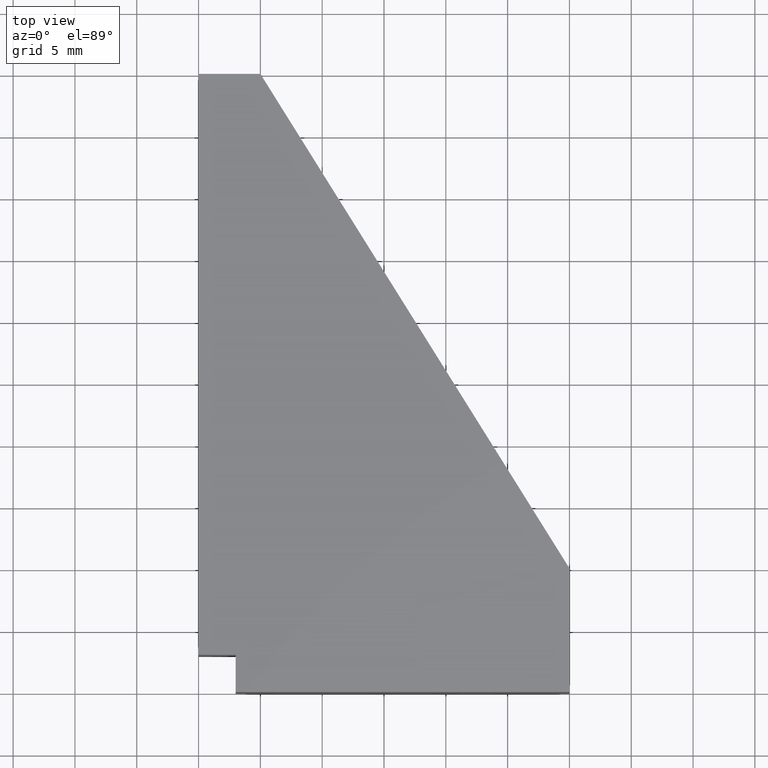
[diagram: clean part render]
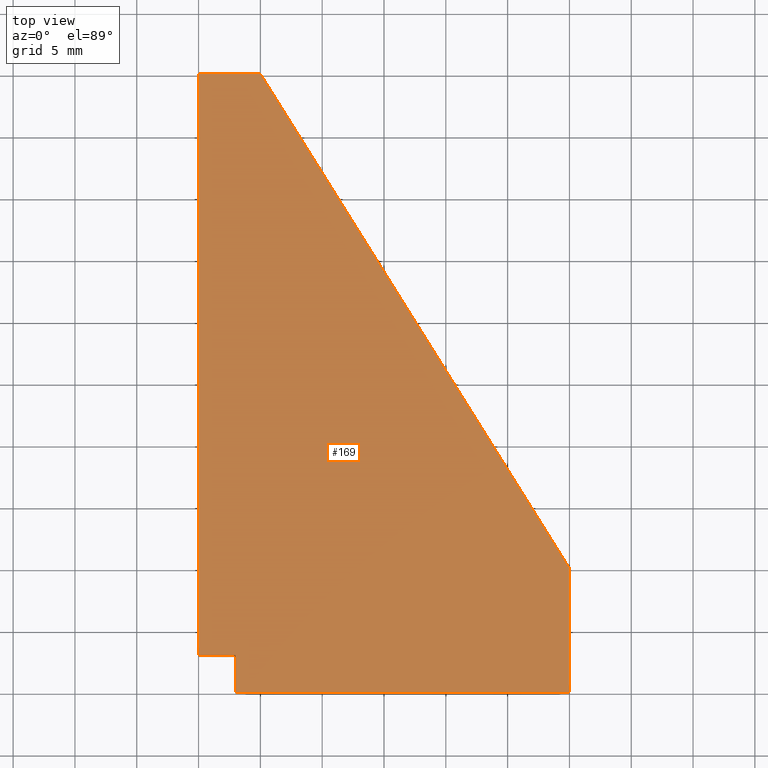
[diagram: same view with one face highlighted and labeled with its STEP entity id]
A machine part, top view. The second image highlights one B-rep face of the part: STEP entity #169.
In plain terms, the highlighted planar face has unit normal (0, 0, 1).
Its self-contained STEP definition (entity closure, byte-faithful):
#23=FACE_OUTER_BOUND('',#32,.T.);
#32=EDGE_LOOP('',(#145,#146,#147,#148,#149,#150,#151));
#40=LINE('',#262,#61);
#43=LINE('',#267,#64);
#45=LINE('',#271,#66);
#47=LINE('',#275,#68);
#49=LINE('',#279,#70);
#51=LINE('',#283,#72);
#53=LINE('',#286,#74);
#61=VECTOR('',#215,10.);
#64=VECTOR('',#220,10.);
#66=VECTOR('',#224,10.);
#68=VECTOR('',#228,10.);
#70=VECTOR('',#232,10.);
#72=VECTOR('',#236,10.);
#74=VECTOR('',#240,10.);
#82=VERTEX_POINT('',#260);
#83=VERTEX_POINT('',#261);
#84=VERTEX_POINT('',#266);
#85=VERTEX_POINT('',#270);
#86=VERTEX_POINT('',#274);
#87=VERTEX_POINT('',#278);
#88=VERTEX_POINT('',#282);
#96=EDGE_CURVE('',#82,#83,#40,.T.);
#99=EDGE_CURVE('',#83,#84,#43,.T.);
#101=EDGE_CURVE('',#84,#85,#45,.T.);
#103=EDGE_CURVE('',#85,#86,#47,.T.);
#105=EDGE_CURVE('',#86,#87,#49,.T.);
#107=EDGE_CURVE('',#87,#88,#51,.T.);
#109=EDGE_CURVE('',#88,#82,#53,.T.);
#145=ORIENTED_EDGE('',*,*,#96,.F.);
#146=ORIENTED_EDGE('',*,*,#109,.F.);
#147=ORIENTED_EDGE('',*,*,#107,.F.);
#148=ORIENTED_EDGE('',*,*,#105,.F.);
#149=ORIENTED_EDGE('',*,*,#103,.F.);
#150=ORIENTED_EDGE('',*,*,#101,.F.);
#151=ORIENTED_EDGE('',*,*,#99,.F.);
#160=PLANE('',#201);
#169=ADVANCED_FACE('',(#23),#160,.T.);
#201=AXIS2_PLACEMENT_3D('',#287,#241,#242);
#215=DIRECTION('',(-1.,-8.34726660672951E-18,0.));
#220=DIRECTION('',(-1.48029736616687E-15,1.,0.));
#224=DIRECTION('',(-1.,1.8503717077086E-16,0.));
#228=DIRECTION('',(3.77948263702181E-16,1.,0.));
#232=DIRECTION('',(1.,0.,0.));
#236=DIRECTION('',(0.52999894000318,-0.847998304005088,0.));
#240=DIRECTION('',(0.,-1.,0.));
#241=DIRECTION('center_axis',(0.,0.,1.));
#242=DIRECTION('ref_axis',(1.,0.,0.));
#260=CARTESIAN_POINT('',(0.,1.53537805366403E-15,5.));
#261=CARTESIAN_POINT('',(-27.,1.31000185528234E-15,5.));
#262=CARTESIAN_POINT('',(0.,1.53537805366403E-15,5.));
#266=CARTESIAN_POINT('',(-27.,3.,5.));
#267=CARTESIAN_POINT('',(-27.,1.31000185528234E-15,5.));
#270=CARTESIAN_POINT('',(-30.,3.,5.));
#271=CARTESIAN_POINT('',(-27.,3.,5.));
#274=CARTESIAN_POINT('',(-30.,50.,5.));
#275=CARTESIAN_POINT('',(-30.,3.,5.));
#278=CARTESIAN_POINT('',(-25.,50.,5.));
#279=CARTESIAN_POINT('',(-30.,50.,5.));
#282=CARTESIAN_POINT('',(0.,10.,5.));
#283=CARTESIAN_POINT('',(-25.,50.,5.));
#286=CARTESIAN_POINT('',(0.,10.,5.));
#287=CARTESIAN_POINT('Origin',(-18.7671491259835,20.9193159128567,5.));